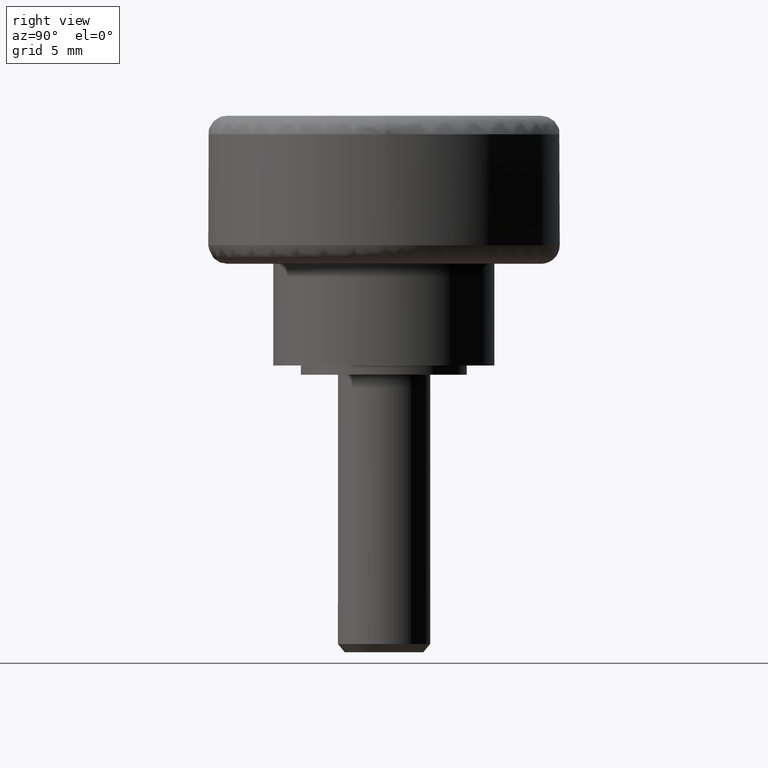
[diagram: clean part render]
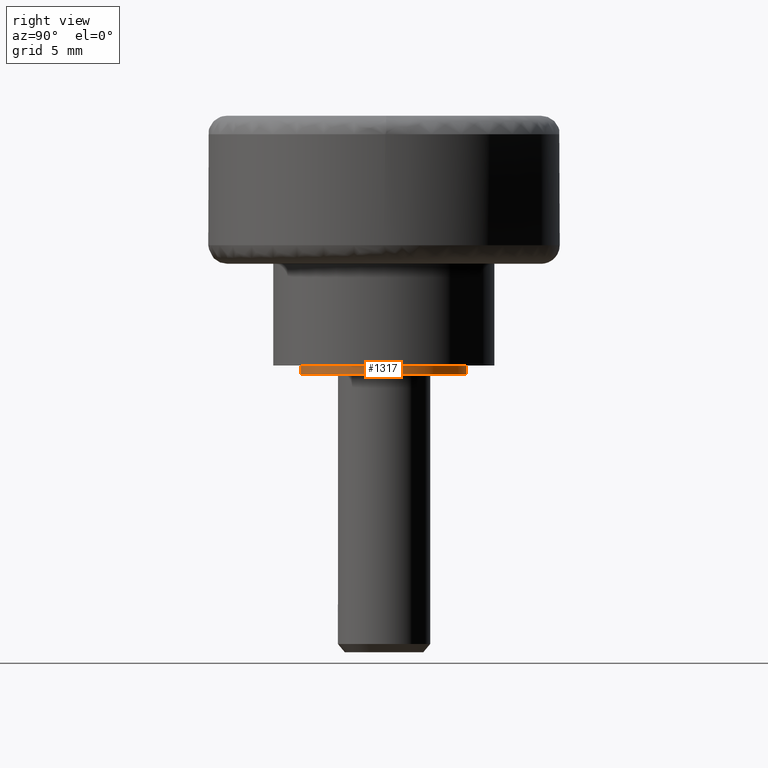
[diagram: same view with one face highlighted and labeled with its STEP entity id]
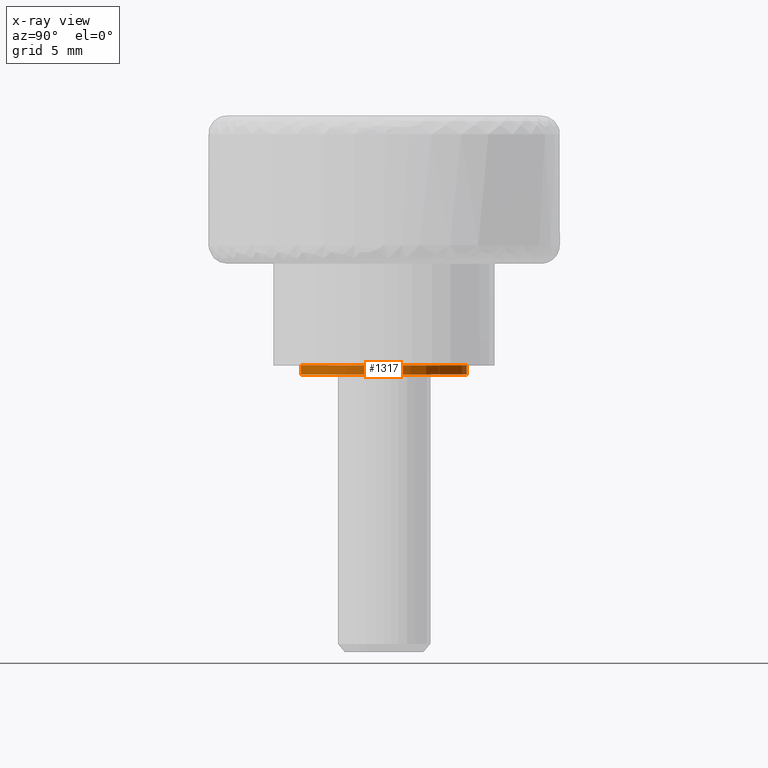
[diagram: x-ray of the same camera — body ghosted, the highlighted face saturated]
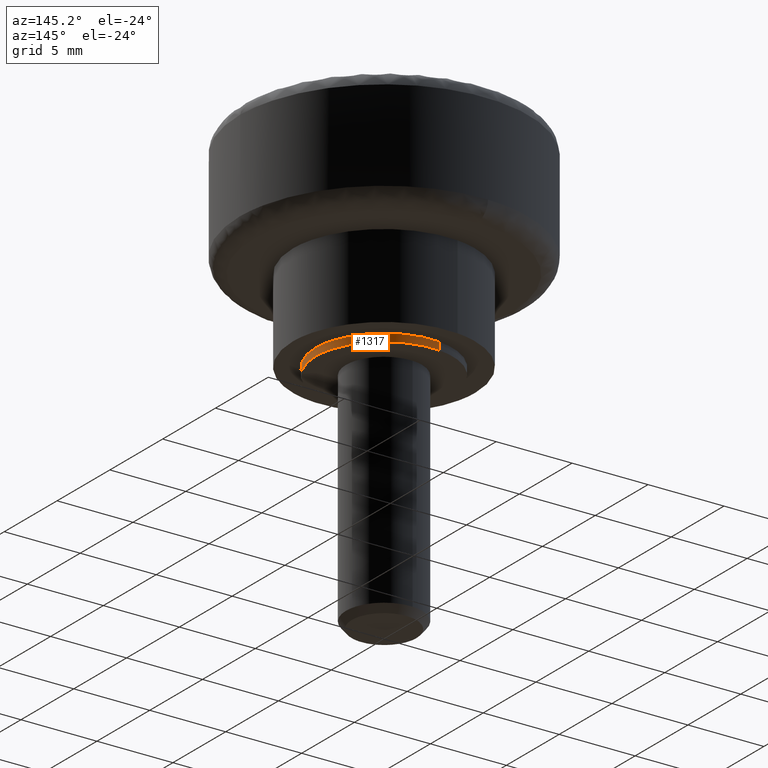
[diagram: same view with one face highlighted and labeled with its STEP entity id]
A machine part, right view. The second image highlights one B-rep face of the part: STEP entity #1317.
The next image is the same camera in x-ray: the body ghosted, the highlighted face saturated — about 0% of this face is hidden behind the body in this view.
A second angle (auxiliary view) of the same face is appended — the face is thin or edge-on in the first view.
In plain terms, the highlighted face is a freeform B-spline surface patch.
Its self-contained STEP definition (entity closure, byte-faithful):
#1215=CARTESIAN_POINT('',(-0.531154055955413,4.468542868636499,0.512500000000000));
#1216=CARTESIAN_POINT('',(-0.403266278870900,4.483744269518725,0.512500000000000));
#1217=CARTESIAN_POINT('',(-0.274718427906856,4.491606592898400,0.512500000000000));
#1218=CARTESIAN_POINT('',(4.216888164991543,4.766325020805256,0.512500000000000));
#1219=CARTESIAN_POINT('',(4.491606592898400,0.274718427906856,0.512500000000000));
#1220=CARTESIAN_POINT('',(4.766325020805256,-4.216888164991543,0.512500000000000));
#1221=CARTESIAN_POINT('',(0.274718427906856,-4.491606592898400,0.512500000000000));
#1222=CARTESIAN_POINT('',(-0.531154055955413,4.468542868636499,-0.012812500000000));
#1223=CARTESIAN_POINT('',(-0.403266278870900,4.483744269518725,-0.012812500000000));
#1224=CARTESIAN_POINT('',(-0.274718427906856,4.491606592898400,-0.012812500000000));
#1225=CARTESIAN_POINT('',(4.216888164991543,4.766325020805256,-0.012812500000000));
#1226=CARTESIAN_POINT('',(4.491606592898400,0.274718427906856,-0.012812500000000));
#1227=CARTESIAN_POINT('',(4.766325020805256,-4.216888164991543,-0.012812500000000));
#1228=CARTESIAN_POINT('',(0.274718427906856,-4.491606592898400,-0.012812500000000));
#1236=(BOUNDED_SURFACE()B_SPLINE_SURFACE(2,1,((#1215,#1222),(#1216,#1223),(#1217,#1224),(#1218,#1225),(#1219,#1226),(#1220,#1227),(#1221,#1228)),.UNSPECIFIED.,.F.,.F.,.U.)B_SPLINE_SURFACE_WITH_KNOTS((3,2,2,3),(2,2),(0.0,0.298233764908629,7.754077887624337,15.209922010340049),(0.0,1.0),.UNSPECIFIED.)GEOMETRIC_REPRESENTATION_ITEM()RATIONAL_B_SPLINE_SURFACE(((0.977505800795127,0.977505800795127),(0.988284271247462,0.988284271247462),(1.0,1.0),(0.707106781186548,0.707106781186548),(1.0,1.0),(0.707106781186548,0.707106781186548),(1.0,1.0)))REPRESENTATION_ITEM('')SURFACE());
#1237=CARTESIAN_POINT('',(-0.531154002329973,4.468542875010694,9.050677E-017));
#1238=VERTEX_POINT('',#1237);
#1239=CARTESIAN_POINT('',(4.500000000000000,0.0,0.0));
#1240=VERTEX_POINT('',#1239);
#1241=CARTESIAN_POINT('',(-0.531154002329973,4.468542875010694,9.050677E-017));
#1242=CARTESIAN_POINT('',(-0.266508484241235,4.500000000000000,0.0));
#1243=CARTESIAN_POINT('',(0.0,4.500000000000000,0.0));
#1244=CARTESIAN_POINT('',(4.500000000000000,4.500000000000000,0.0));
#1245=CARTESIAN_POINT('',(4.500000000000000,0.0,0.0));
#1253=(BOUNDED_CURVE()B_SPLINE_CURVE(2,(#1241,#1242,#1243,#1244,#1245),.UNSPECIFIED.,.F.,.U.)B_SPLINE_CURVE_WITH_KNOTS((3,2,3),(0.229562477571944,0.250000000000000,0.500000000000000),.UNSPECIFIED.)CURVE()GEOMETRIC_REPRESENTATION_ITEM()RATIONAL_B_SPLINE_CURVE((0.956026762138398,0.976055953085898,1.0,0.707106781186547,1.0))REPRESENTATION_ITEM(''));
#1254=EDGE_CURVE('',#1238,#1240,#1253,.T.);
#1255=ORIENTED_EDGE('',*,*,#1254,.F.);
#1256=CARTESIAN_POINT('',(-0.531154002990568,4.468542874932172,0.500000000000000));
#1257=VERTEX_POINT('',#1256);
#1258=CARTESIAN_POINT('',(-0.531154002990568,4.468542874932172,0.500000000000000));
#1259=CARTESIAN_POINT('',(-0.531154002329973,4.468542875010694,9.050677E-017));
#1260=QUASI_UNIFORM_CURVE('',1,(#1258,#1259),.UNSPECIFIED.,.F.,.U.);
#1261=EDGE_CURVE('',#1257,#1238,#1260,.T.);
#1262=ORIENTED_EDGE('',*,*,#1261,.F.);
#1263=CARTESIAN_POINT('',(4.500000000000000,0.0,0.500000000000000));
#1264=VERTEX_POINT('',#1263);
#1265=CARTESIAN_POINT('',(-0.531154002990568,4.468542874932172,0.500000000000000));
#1266=CARTESIAN_POINT('',(-0.266508484908813,4.500000000000000,0.500000000000000));
#1267=CARTESIAN_POINT('',(0.0,4.500000000000000,0.500000000000000));
#1268=CARTESIAN_POINT('',(4.500000000000000,4.500000000000000,0.500000000000000));
#1269=CARTESIAN_POINT('',(4.500000000000000,0.0,0.500000000000000));
#1277=(BOUNDED_CURVE()B_SPLINE_CURVE(2,(#1265,#1266,#1267,#1268,#1269),.UNSPECIFIED.,.F.,.U.)B_SPLINE_CURVE_WITH_KNOTS((3,2,3),(0.229562477521975,0.250000000000000,0.500000000000000),.UNSPECIFIED.)CURVE()GEOMETRIC_REPRESENTATION_ITEM()RATIONAL_B_SPLINE_CURVE((0.956026762040459,0.976055953027356,1.0,0.707106781186547,1.0))REPRESENTATION_ITEM(''));
#1278=EDGE_CURVE('',#1257,#1264,#1277,.T.);
#1279=ORIENTED_EDGE('',*,*,#1278,.T.);
#1280=CARTESIAN_POINT('',(0.274712488240679,-4.491606956176063,0.500000000000000));
#1281=VERTEX_POINT('',#1280);
#1282=CARTESIAN_POINT('',(4.500000000000000,0.0,0.500000000000000));
#1283=CARTESIAN_POINT('',(4.500000000000000,-4.233182909460686,0.500000000000000));
#1284=CARTESIAN_POINT('',(0.274712488240679,-4.491606956176063,0.500000000000000));
#1292=(BOUNDED_CURVE()B_SPLINE_CURVE(2,(#1282,#1283,#1284),.UNSPECIFIED.,.F.,.U.)B_SPLINE_CURVE_WITH_KNOTS((3,3),(0.500000000000000,0.739333190416561),.UNSPECIFIED.)CURVE()GEOMETRIC_REPRESENTATION_ITEM()RATIONAL_B_SPLINE_CURVE((1.0,0.719603725960002,0.976072530695277))REPRESENTATION_ITEM(''));
#1293=EDGE_CURVE('',#1264,#1281,#1292,.T.);
#1294=ORIENTED_EDGE('',*,*,#1293,.T.);
#1295=CARTESIAN_POINT('',(0.274712413966706,-4.491606960718656,-4.732170E-013));
#1296=VERTEX_POINT('',#1295);
#1297=CARTESIAN_POINT('',(0.274712488240679,-4.491606956176063,0.500000000000000));
#1298=CARTESIAN_POINT('',(0.274712413966706,-4.491606960718656,-4.732170E-013));
#1299=QUASI_UNIFORM_CURVE('',1,(#1297,#1298),.UNSPECIFIED.,.F.,.U.);
#1300=EDGE_CURVE('',#1281,#1296,#1299,.T.);
#1301=ORIENTED_EDGE('',*,*,#1300,.T.);
#1302=CARTESIAN_POINT('',(4.500000000000000,0.0,0.0));
#1303=CARTESIAN_POINT('',(4.500000000000000,-4.233182979592113,0.0));
#1304=CARTESIAN_POINT('',(0.274712413966706,-4.491606960718656,-4.732170E-013));
#1312=(BOUNDED_CURVE()B_SPLINE_CURVE(2,(#1302,#1303,#1304),.UNSPECIFIED.,.F.,.U.)B_SPLINE_CURVE_WITH_KNOTS((3,3),(0.500000000000000,0.739333193269825),.UNSPECIFIED.)CURVE()GEOMETRIC_REPRESENTATION_ITEM()RATIONAL_B_SPLINE_CURVE((1.0,0.719603722617195,0.976072536810378))REPRESENTATION_ITEM(''));
#1313=EDGE_CURVE('',#1240,#1296,#1312,.T.);
#1314=ORIENTED_EDGE('',*,*,#1313,.F.);
#1315=EDGE_LOOP('',(#1255,#1262,#1279,#1294,#1301,#1314));
#1316=FACE_OUTER_BOUND('',#1315,.T.);
#1317=ADVANCED_FACE('',(#1316),#1236,.T.);